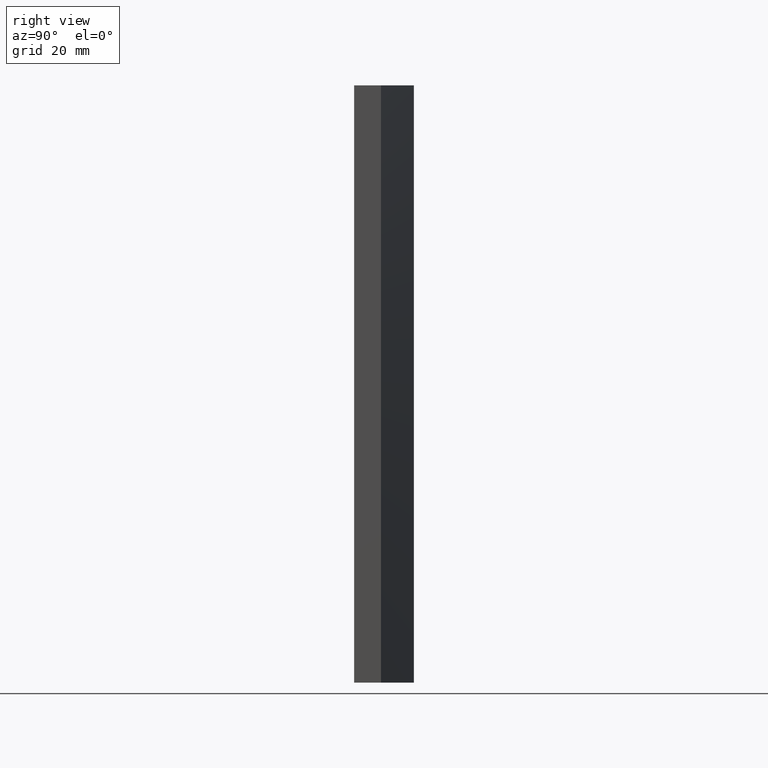
[diagram: clean part render]
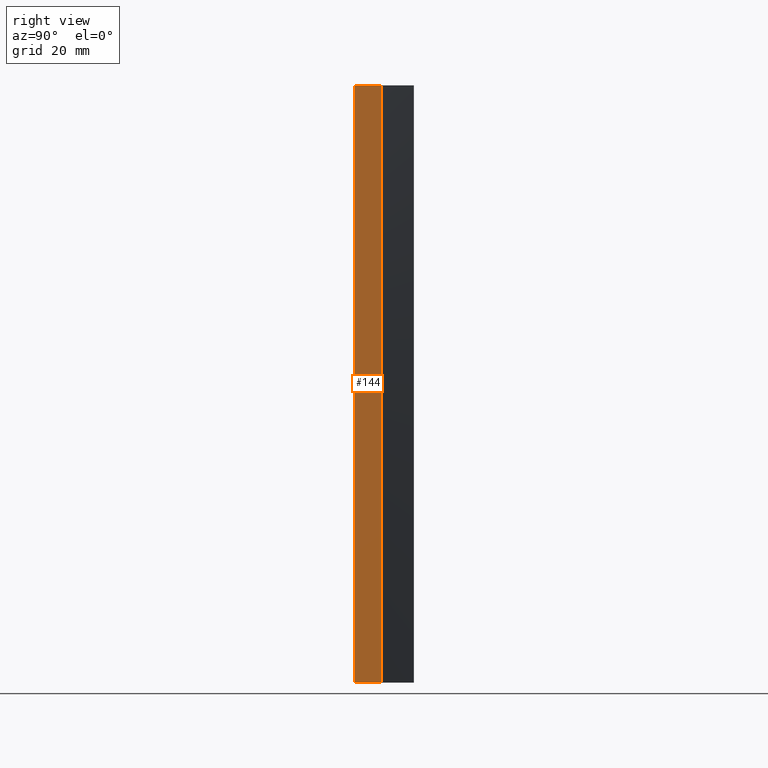
[diagram: same view with one face highlighted and labeled with its STEP entity id]
A machine part, right view. The second image highlights one B-rep face of the part: STEP entity #144.
In plain terms, the highlighted planar face has unit normal (1, 0, 0).
Its self-contained STEP definition (entity closure, byte-faithful):
#18=FACE_OUTER_BOUND('',#26,.T.);
#26=EDGE_LOOP('',(#109,#110,#111,#112));
#40=LINE('',#228,#58);
#41=LINE('',#231,#59);
#42=LINE('',#233,#60);
#43=LINE('',#234,#61);
#58=VECTOR('',#188,10.);
#59=VECTOR('',#191,10.);
#60=VECTOR('',#192,10.);
#61=VECTOR('',#193,10.);
#73=VERTEX_POINT('',#224);
#74=VERTEX_POINT('',#226);
#75=VERTEX_POINT('',#230);
#76=VERTEX_POINT('',#232);
#88=EDGE_CURVE('',#73,#74,#40,.T.);
#89=EDGE_CURVE('',#75,#73,#41,.T.);
#90=EDGE_CURVE('',#76,#74,#42,.T.);
#91=EDGE_CURVE('',#75,#76,#43,.T.);
#109=ORIENTED_EDGE('',*,*,#89,.T.);
#110=ORIENTED_EDGE('',*,*,#88,.T.);
#111=ORIENTED_EDGE('',*,*,#90,.F.);
#112=ORIENTED_EDGE('',*,*,#91,.F.);
#136=PLANE('',#166);
#144=ADVANCED_FACE('',(#18),#136,.T.);
#166=AXIS2_PLACEMENT_3D('',#229,#189,#190);
#188=DIRECTION('',(0.,0.,1.));
#189=DIRECTION('center_axis',(1.,0.,0.));
#190=DIRECTION('ref_axis',(0.,1.,0.));
#191=DIRECTION('',(0.,1.,0.));
#192=DIRECTION('',(0.,1.,0.));
#193=DIRECTION('',(0.,0.,1.));
#224=CARTESIAN_POINT('',(62.,9.00000000000001,0.));
#226=CARTESIAN_POINT('',(62.,9.00000000000001,200.));
#228=CARTESIAN_POINT('',(62.,9.00000000000001,0.));
#229=CARTESIAN_POINT('Origin',(62.,1.11022302462516E-14,0.));
#230=CARTESIAN_POINT('',(62.,1.11022302462516E-14,0.));
#231=CARTESIAN_POINT('',(62.,1.11022302462516E-14,0.));
#232=CARTESIAN_POINT('',(62.,1.11022302462516E-14,200.));
#233=CARTESIAN_POINT('',(62.,1.11022302462516E-14,200.));
#234=CARTESIAN_POINT('',(62.,1.11022302462516E-14,0.));